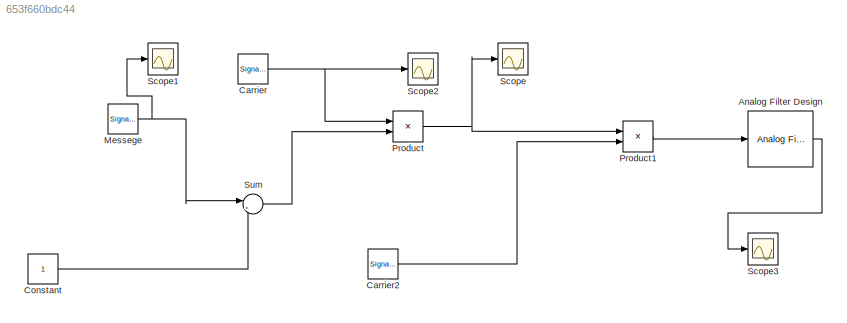
MODEL slx_653f660bdc44
KIND model
BLOCK [Reference] Analog Filter Design  REF=dsparch4/Analog
Filter Design
  N = 8
  Ports = [1, 1]
  Rp = 2
  Rs = 40
  SourceBlock = dsparch4/Analog\nFilter Design
  SourceType = Analog Filter Design
  Whi = 80
  Wlo = 2*pi*2
  filttype = Lowpass
  method = Butterworth
BLOCK [SignalGenerator] Carrier
  Frequency = 2*pi*10
  Ports = [0, 1]
  Units = rad/sec
BLOCK [SignalGenerator] Carrier2
  Frequency = 2*pi*10
  Ports = [0, 1]
  Units = rad/sec
BLOCK [Constant] Constant
BLOCK [SignalGenerator] Messege
  Frequency = 2*pi*2
  Ports = [0, 1]
  Units = rad/sec
BLOCK [Product] Product
  InputSameDT = off
  OutDataTypeStr = Inherit: Inherit via internal rule
  Ports = [2, 1]
  RndMeth = Floor
  SampleTime = 0.01
  SaturateOnIntegerOverflow = off
BLOCK [Product] Product1
  InputSameDT = off
  OutDataTypeStr = Inherit: Inherit via internal rule
  Ports = [2, 1]
  RndMeth = Floor
  SampleTime = 0.01
  SaturateOnIntegerOverflow = off
BLOCK [Scope] Scope
  DataFormat = StructureWithTime
  Floating = off
  NumInputPorts = 1
  Ports = [1]
  SampleTime = 0
  ShowLegends = off
BLOCK [Scope] Scope1
  DataFormat = StructureWithTime
  Floating = off
  NumInputPorts = 1
  Ports = [1]
  SampleTime = 0
  SaveName = ScopeData1
  ShowLegends = off
BLOCK [Scope] Scope2
  DataFormat = StructureWithTime
  Floating = off
  NumInputPorts = 1
  Ports = [1]
  SampleTime = 0
  SaveName = ScopeData2
  ShowLegends = off
BLOCK [Scope] Scope3
  DataFormat = StructureWithTime
  Floating = off
  NumInputPorts = 1
  Ports = [1]
  SampleTime = 0
  SaveName = ScopeData3
  ShowLegends = off
BLOCK [Sum] Sum
  IconShape = round
  InputSameDT = off
  Inputs = |++
  OutDataTypeStr = Inherit: Inherit via internal rule
  Ports = [2, 1]
  SaturateOnIntegerOverflow = off
LINE Analog Filter Design:1 -> Scope3:1
LINE Carrier2:1 -> Product1:2
NET Carrier:1 -> Product:1, Scope2:1
LINE Constant:1 -> Sum:2
NET Messege:1 -> Scope1:1, Sum:1
LINE Product1:1 -> Analog Filter Design:1
NET Product:1 -> Product1:1, Scope:1
LINE Sum:1 -> Product:2
note: NET lines group one-source signal fan-out (src -> all destinations, sorted); 1:1 wires keep LINE
